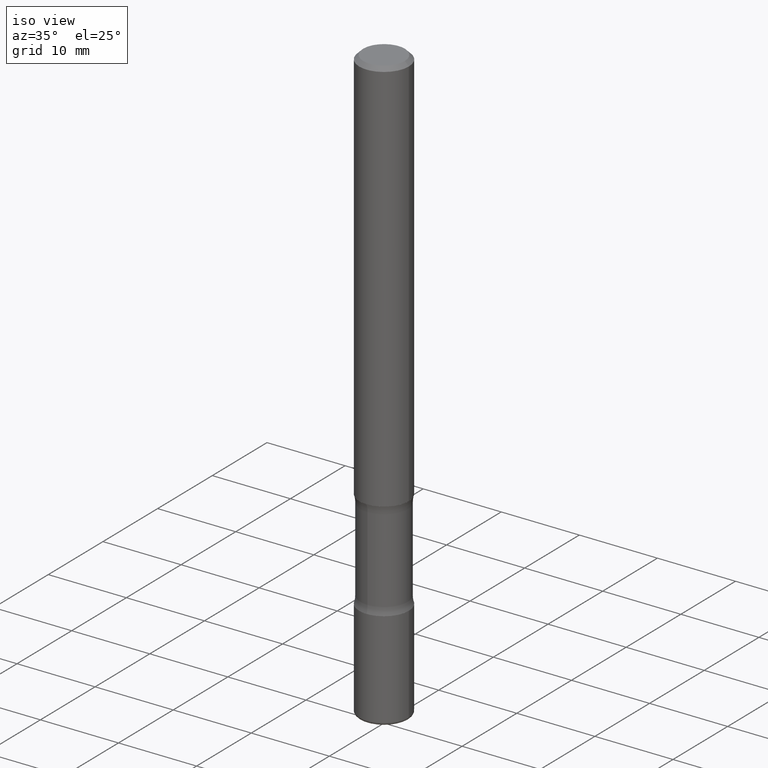
[diagram: clean part render]
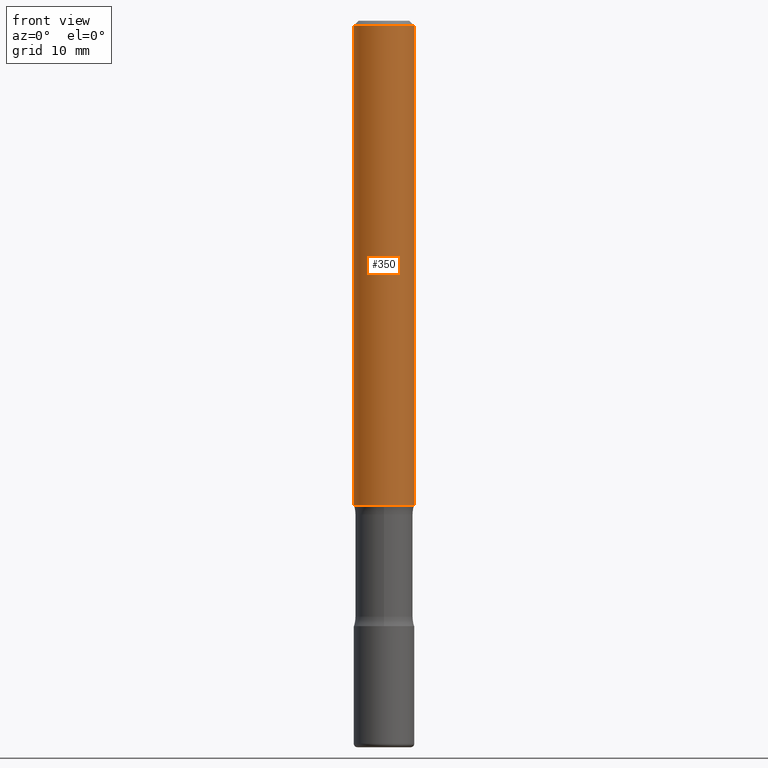
[diagram: tour spotlight — one face highlighted and labeled with its STEP entity id]
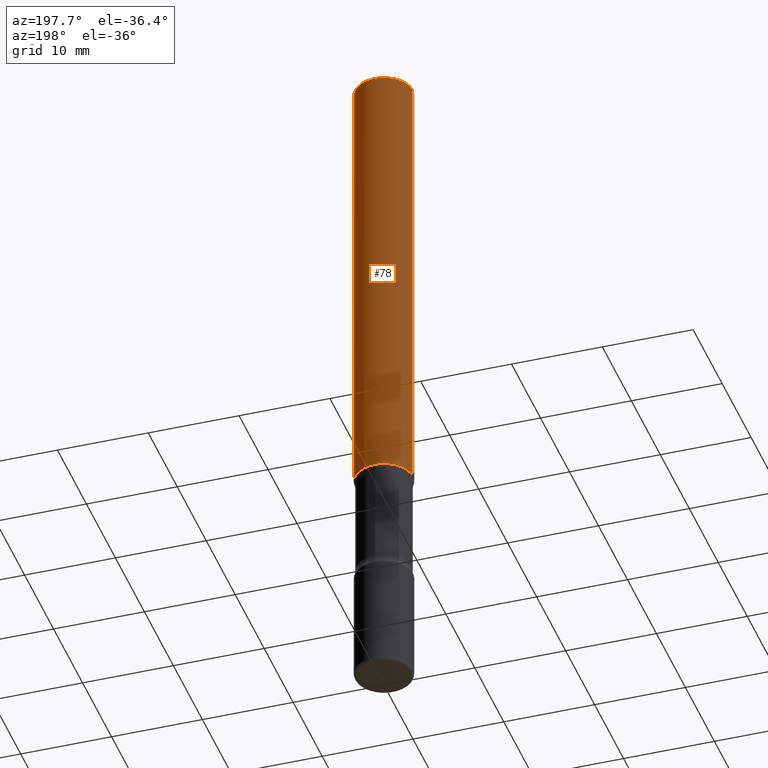
[diagram: tour spotlight — one face highlighted and labeled with its STEP entity id]
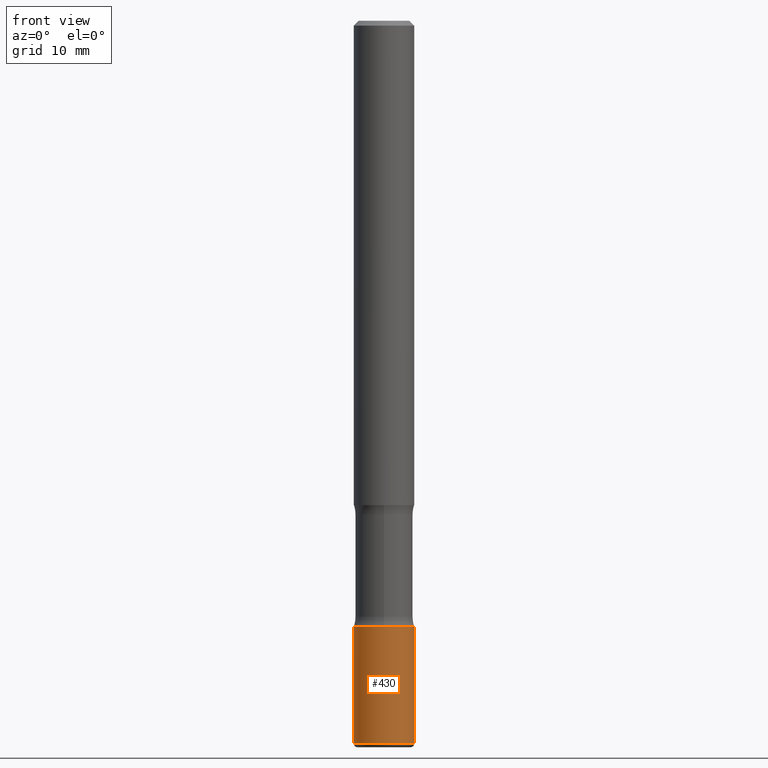
[diagram: tour spotlight — one face highlighted and labeled with its STEP entity id]
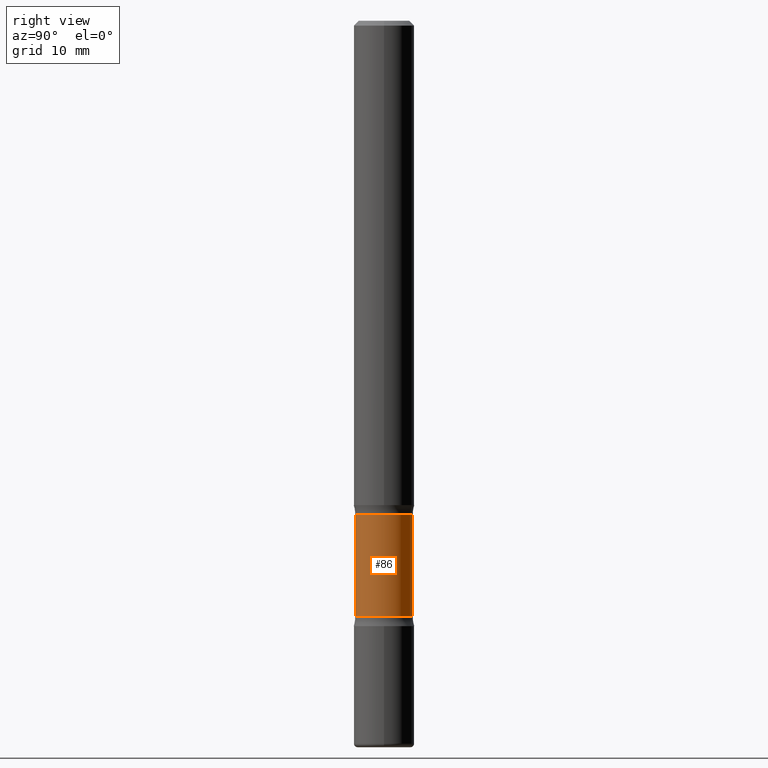
[diagram: tour spotlight — one face highlighted and labeled with its STEP entity id]
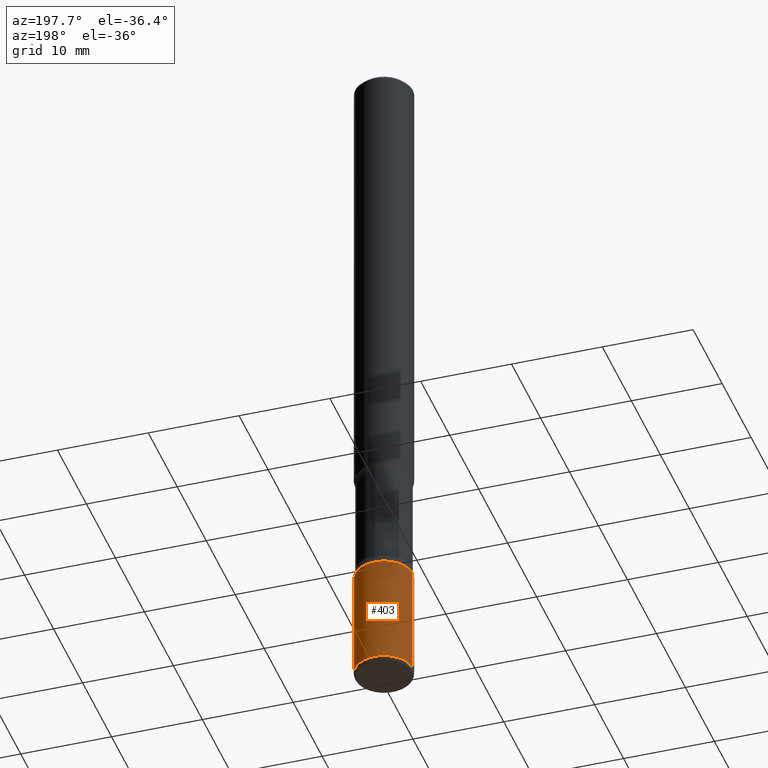
[diagram: tour spotlight — one face highlighted and labeled with its STEP entity id]
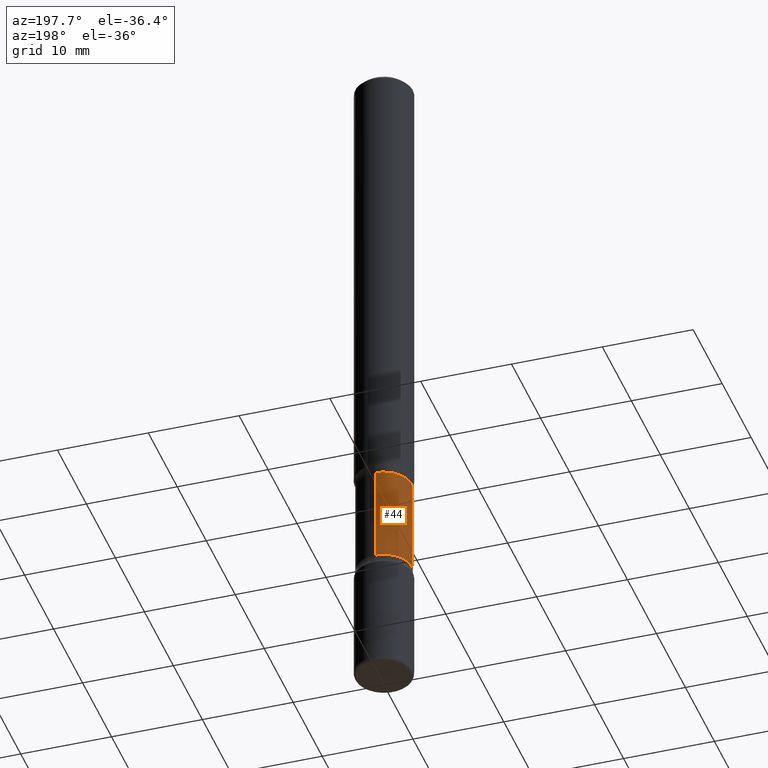
[diagram: tour spotlight — one face highlighted and labeled with its STEP entity id]
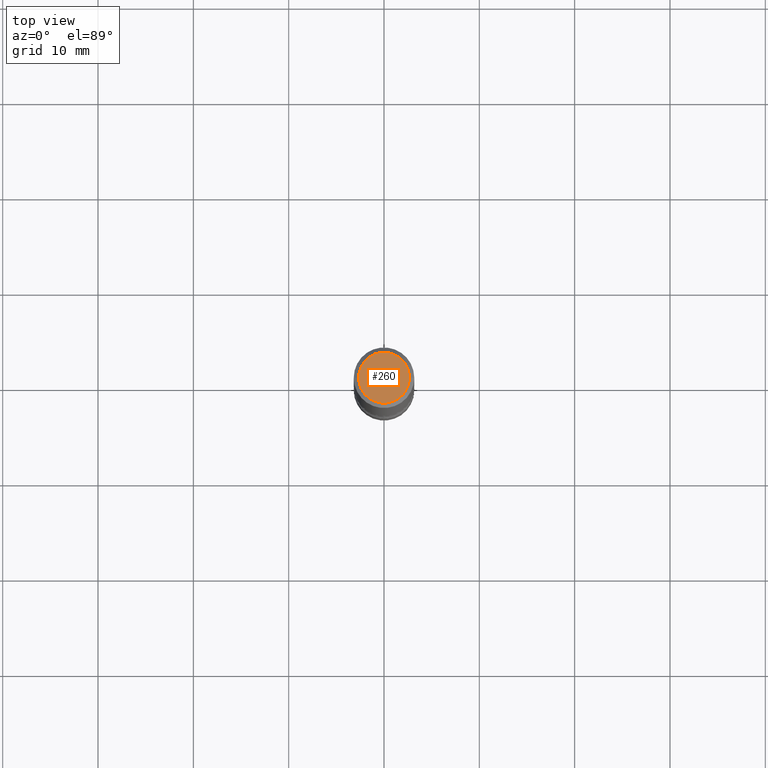
[diagram: tour spotlight — one face highlighted and labeled with its STEP entity id]
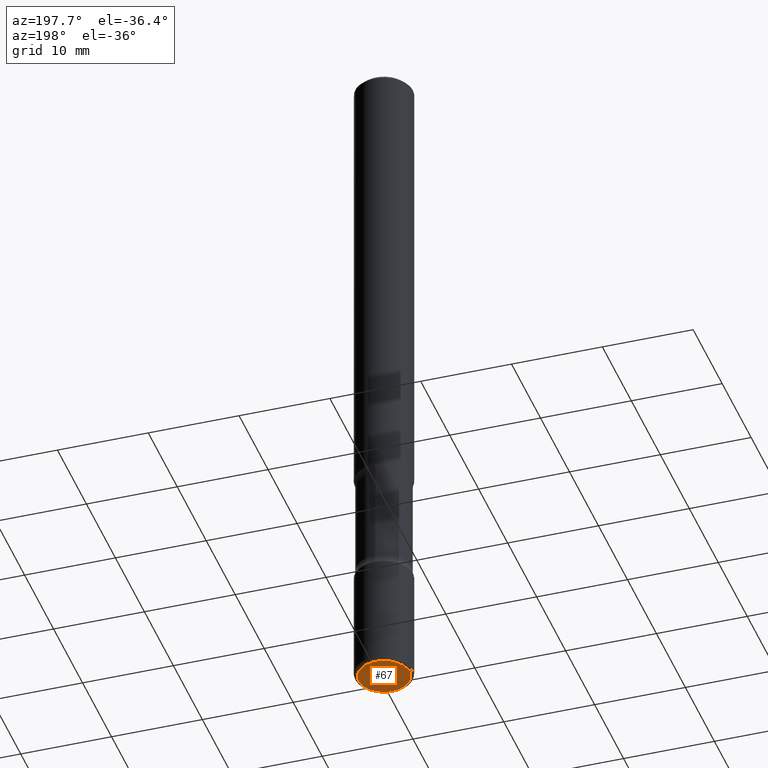
[diagram: tour spotlight — one face highlighted and labeled with its STEP entity id]
A machine part: a face-by-face anatomy tour. The part has 20 B-rep faces; the first image is the clean iso view, then the 8 largest visible faces are spotlighted one at a time (largest first), each with its STEP entity span.

Face 1 — front view, entity #350. In plain terms, the highlighted cylindrical surface (edge-blend (fillet) strip) has radius 3.175 mm, axis along (-0, 0, 1).
Definition (entity closure, byte-faithful):
#1 = VECTOR ( 'NONE', #219, 39.37007874015748143 ) ;
#11 = CIRCLE ( 'NONE', #554, 0.1249999999999997918 ) ;
#14 = AXIS2_PLACEMENT_3D ( 'NONE', #116, #291, #80 ) ;
#39 = EDGE_CURVE ( 'NONE', #68, #518, #11, .T. ) ;
#53 = DIRECTION ( 'NONE',  ( 1.000000000000000000, -6.982962677686266711E-15, 0.000000000000000000 ) ) ;
#68 = VERTEX_POINT ( 'NONE', #333 ) ;
#80 = DIRECTION ( 'NONE',  ( 1.000000000000000000, -6.982962677686269077E-15, 0.000000000000000000 ) ) ;
#88 = LINE ( 'NONE', #531, #1 ) ;
#95 = VECTOR ( 'NONE', #270, 39.37007874015748143 ) ;
#114 = ORIENTED_EDGE ( 'NONE', *, *, #478, .T. ) ;
#116 = CARTESIAN_POINT ( 'NONE',  ( 4.890937612370273194E-29, -6.982962677686291165E-15, -2.000000000000000000 ) ) ;
#122 = CARTESIAN_POINT ( 'NONE',  ( -0.1250000000000000278, -2.638217732531448450E-15, -2.000000000000000000 ) ) ;
#130 = ORIENTED_EDGE ( 'NONE', *, *, #376, .F. ) ;
#179 = EDGE_CURVE ( 'NONE', #188, #518, #88, .T. ) ;
#185 = DIRECTION ( 'NONE',  ( -2.445468806185136597E-29, 3.491481338843145583E-15, 1.000000000000000000 ) ) ;
#188 = VERTEX_POINT ( 'NONE', #308 ) ;
#190 = FACE_OUTER_BOUND ( 'NONE', #442, .T. ) ;
#198 = ORIENTED_EDGE ( 'NONE', *, *, #39, .F. ) ;
#214 = LINE ( 'NONE', #383, #95 ) ;
#219 = DIRECTION ( 'NONE',  ( -2.445468806185136877E-29, 3.491481338843145188E-15, 1.000000000000000000 ) ) ;
#256 = CARTESIAN_POINT ( 'NONE',  ( 0.000000000000000000, 0.000000000000000000, 0.000000000000000000 ) ) ;
#257 = CARTESIAN_POINT ( 'NONE',  ( 4.890937612370279289E-31, -6.982962677686299005E-17, -0.02000000000000002470 ) ) ;
#267 = CARTESIAN_POINT ( 'NONE',  ( 0.1249999999999997918, -9.273918764983029686E-16, -0.02000000000000002470 ) ) ;
#270 = DIRECTION ( 'NONE',  ( -2.445468806185136877E-29, 3.491481338843145188E-15, 1.000000000000000000 ) ) ;
#287 = CIRCLE ( 'NONE', #14, 0.1250000000000000278 ) ;
#289 = ORIENTED_EDGE ( 'NONE', *, *, #179, .T. ) ;
#291 = DIRECTION ( 'NONE',  ( -2.445468806185136597E-29, 3.491481338843145583E-15, 1.000000000000000000 ) ) ;
#308 = CARTESIAN_POINT ( 'NONE',  ( 0.1250000000000000278, -7.855833012397075293E-15, -2.000000000000000000 ) ) ;
#333 = CARTESIAN_POINT ( 'NONE',  ( -0.1249999999999997918, 8.030407079339189559E-16, -0.02000000000000002470 ) ) ;
#350 = ADVANCED_FACE ( 'NONE', ( #190 ), #365, .T. ) ;
#365 = CYLINDRICAL_SURFACE ( 'NONE', #465, 0.1249999999999999167 ) ;
#376 = EDGE_CURVE ( 'NONE', #381, #68, #214, .T. ) ;
#381 = VERTEX_POINT ( 'NONE', #122 ) ;
#383 = CARTESIAN_POINT ( 'NONE',  ( -0.1249999999999999167, 8.881784197001246407E-16, -6.148668862818628023E-30 ) ) ;
#442 = EDGE_LOOP ( 'NONE', ( #130, #114, #289, #198 ) ) ;
#465 = AXIS2_PLACEMENT_3D ( 'NONE', #256, #477, #468 ) ;
#468 = DIRECTION ( 'NONE',  ( 1.000000000000000000, -6.982962677686266711E-15, 4.876176775795935793E-29 ) ) ;
#477 = DIRECTION ( 'NONE',  ( -2.445468806185136597E-29, 3.491481338843145583E-15, 1.000000000000000000 ) ) ;
#478 = EDGE_CURVE ( 'NONE', #381, #188, #287, .T. ) ;
#518 = VERTEX_POINT ( 'NONE', #267 ) ;
#531 = CARTESIAN_POINT ( 'NONE',  ( 0.1249999999999999167, -8.728703347107827472E-16, 6.095220969744915537E-30 ) ) ;
#554 = AXIS2_PLACEMENT_3D ( 'NONE', #257, #185, #53 ) ;

Face 2 — auxiliary view, entity #78. In plain terms, the highlighted cylindrical surface (edge-blend (fillet) strip) has radius 3.175 mm, axis along (-0, 0, 1).
Definition (entity closure, byte-faithful):
#1 = VECTOR ( 'NONE', #219, 39.37007874015748143 ) ;
#13 = CARTESIAN_POINT ( 'NONE',  ( 4.890937612370273194E-29, -6.982962677686291165E-15, -2.000000000000000000 ) ) ;
#20 = CYLINDRICAL_SURFACE ( 'NONE', #223, 0.1249999999999999167 ) ;
#34 = EDGE_LOOP ( 'NONE', ( #284, #321, #449, #110 ) ) ;
#68 = VERTEX_POINT ( 'NONE', #333 ) ;
#78 = ADVANCED_FACE ( 'NONE', ( #226 ), #20, .T. ) ;
#88 = LINE ( 'NONE', #531, #1 ) ;
#95 = VECTOR ( 'NONE', #270, 39.37007874015748143 ) ;
#110 = ORIENTED_EDGE ( 'NONE', *, *, #179, .F. ) ;
#118 = EDGE_CURVE ( 'NONE', #188, #381, #240, .T. ) ;
#122 = CARTESIAN_POINT ( 'NONE',  ( -0.1250000000000000278, -2.638217732531448450E-15, -2.000000000000000000 ) ) ;
#179 = EDGE_CURVE ( 'NONE', #188, #518, #88, .T. ) ;
#180 = DIRECTION ( 'NONE',  ( -2.445468806185136597E-29, 3.491481338843145583E-15, 1.000000000000000000 ) ) ;
#188 = VERTEX_POINT ( 'NONE', #308 ) ;
#214 = LINE ( 'NONE', #383, #95 ) ;
#219 = DIRECTION ( 'NONE',  ( -2.445468806185136877E-29, 3.491481338843145188E-15, 1.000000000000000000 ) ) ;
#221 = DIRECTION ( 'NONE',  ( 1.000000000000000000, -6.982962677686266711E-15, 4.876176775795935793E-29 ) ) ;
#223 = AXIS2_PLACEMENT_3D ( 'NONE', #231, #432, #221 ) ;
#225 = CARTESIAN_POINT ( 'NONE',  ( 4.890937612370279289E-31, -6.982962677686299005E-17, -0.02000000000000002470 ) ) ;
#226 = FACE_OUTER_BOUND ( 'NONE', #34, .T. ) ;
#231 = CARTESIAN_POINT ( 'NONE',  ( 0.000000000000000000, 0.000000000000000000, 0.000000000000000000 ) ) ;
#240 = CIRCLE ( 'NONE', #405, 0.1250000000000000278 ) ;
#267 = CARTESIAN_POINT ( 'NONE',  ( 0.1249999999999997918, -9.273918764983029686E-16, -0.02000000000000002470 ) ) ;
#270 = DIRECTION ( 'NONE',  ( -2.445468806185136877E-29, 3.491481338843145188E-15, 1.000000000000000000 ) ) ;
#284 = ORIENTED_EDGE ( 'NONE', *, *, #118, .T. ) ;
#285 = AXIS2_PLACEMENT_3D ( 'NONE', #225, #480, #349 ) ;
#308 = CARTESIAN_POINT ( 'NONE',  ( 0.1250000000000000278, -7.855833012397075293E-15, -2.000000000000000000 ) ) ;
#321 = ORIENTED_EDGE ( 'NONE', *, *, #376, .T. ) ;
#333 = CARTESIAN_POINT ( 'NONE',  ( -0.1249999999999997918, 8.030407079339189559E-16, -0.02000000000000002470 ) ) ;
#349 = DIRECTION ( 'NONE',  ( 1.000000000000000000, -6.982962677686266711E-15, 0.000000000000000000 ) ) ;
#376 = EDGE_CURVE ( 'NONE', #381, #68, #214, .T. ) ;
#381 = VERTEX_POINT ( 'NONE', #122 ) ;
#383 = CARTESIAN_POINT ( 'NONE',  ( -0.1249999999999999167, 8.881784197001246407E-16, -6.148668862818628023E-30 ) ) ;
#405 = AXIS2_PLACEMENT_3D ( 'NONE', #13, #180, #527 ) ;
#432 = DIRECTION ( 'NONE',  ( -2.445468806185136597E-29, 3.491481338843145583E-15, 1.000000000000000000 ) ) ;
#449 = ORIENTED_EDGE ( 'NONE', *, *, #528, .F. ) ;
#474 = CIRCLE ( 'NONE', #285, 0.1249999999999997918 ) ;
#480 = DIRECTION ( 'NONE',  ( -2.445468806185136597E-29, 3.491481338843145583E-15, 1.000000000000000000 ) ) ;
#518 = VERTEX_POINT ( 'NONE', #267 ) ;
#527 = DIRECTION ( 'NONE',  ( 1.000000000000000000, -6.982962677686269077E-15, 0.000000000000000000 ) ) ;
#528 = EDGE_CURVE ( 'NONE', #518, #68, #474, .T. ) ;
#531 = CARTESIAN_POINT ( 'NONE',  ( 0.1249999999999999167, -8.728703347107827472E-16, 6.095220969744915537E-30 ) ) ;

Face 3 — front view, entity #430. In plain terms, the highlighted cylindrical surface (edge-blend (fillet) strip) has radius 3.175 mm, axis along (-0, 0, 1).
Definition (entity closure, byte-faithful):
#4 = DIRECTION ( 'NONE',  ( 1.000000000000000000, -6.982962677686266711E-15, 4.876176775795935232E-29 ) ) ;
#5 = CARTESIAN_POINT ( 'NONE',  ( -0.1250000000000000555, -8.687209152077199707E-15, -2.499999999999999556 ) ) ;
#18 = EDGE_CURVE ( 'NONE', #244, #396, #170, .T. ) ;
#32 = AXIS2_PLACEMENT_3D ( 'NONE', #416, #153, #462 ) ;
#37 = EDGE_LOOP ( 'NONE', ( #510, #174, #331, #186 ) ) ;
#42 = VECTOR ( 'NONE', #343, 39.37007874015748143 ) ;
#58 = DIRECTION ( 'NONE',  ( 1.000000000000000000, -6.982962677686270655E-15, 0.000000000000000000 ) ) ;
#62 = CARTESIAN_POINT ( 'NONE',  ( 0.1250000000000003331, -1.129494213115757459E-14, -2.984999999999999432 ) ) ;
#85 = FACE_OUTER_BOUND ( 'NONE', #37, .T. ) ;
#91 = CARTESIAN_POINT ( 'NONE',  ( -0.1250000000000001110, 8.881784197001260212E-16, -6.148668862818637832E-30 ) ) ;
#108 = LINE ( 'NONE', #279, #165 ) ;
#111 = EDGE_CURVE ( 'NONE', #244, #543, #516, .T. ) ;
#151 = AXIS2_PLACEMENT_3D ( 'NONE', #210, #382, #4 ) ;
#153 = DIRECTION ( 'NONE',  ( -2.445468806185136597E-29, 3.491481338843145583E-15, 1.000000000000000000 ) ) ;
#165 = VECTOR ( 'NONE', #330, 39.37007874015748143 ) ;
#170 = LINE ( 'NONE', #91, #42 ) ;
#174 = ORIENTED_EDGE ( 'NONE', *, *, #111, .T. ) ;
#177 = DIRECTION ( 'NONE',  ( -2.445468806185136597E-29, 3.491481338843145583E-15, 1.000000000000000000 ) ) ;
#186 = ORIENTED_EDGE ( 'NONE', *, *, #328, .F. ) ;
#210 = CARTESIAN_POINT ( 'NONE',  ( 0.000000000000000000, 0.000000000000000000, 0.000000000000000000 ) ) ;
#244 = VERTEX_POINT ( 'NONE', #541 ) ;
#253 = CARTESIAN_POINT ( 'NONE',  ( 0.1250000000000000555, -9.601573681818646704E-15, -2.499999999999999556 ) ) ;
#254 = CYLINDRICAL_SURFACE ( 'NONE', #151, 0.1250000000000001110 ) ;
#265 = AXIS2_PLACEMENT_3D ( 'NONE', #269, #177, #58 ) ;
#269 = CARTESIAN_POINT ( 'NONE',  ( 7.299724386462631351E-29, -1.042207179644678651E-14, -2.984999999999999432 ) ) ;
#278 = EDGE_CURVE ( 'NONE', #543, #370, #108, .T. ) ;
#279 = CARTESIAN_POINT ( 'NONE',  ( 0.1250000000000001110, -8.728703347107841277E-16, 6.095220969744924646E-30 ) ) ;
#328 = EDGE_CURVE ( 'NONE', #396, #370, #389, .T. ) ;
#330 = DIRECTION ( 'NONE',  ( -2.445468806185136877E-29, 3.491481338843145188E-15, 1.000000000000000000 ) ) ;
#331 = ORIENTED_EDGE ( 'NONE', *, *, #278, .T. ) ;
#343 = DIRECTION ( 'NONE',  ( -2.445468806185136877E-29, 3.491481338843145188E-15, 1.000000000000000000 ) ) ;
#370 = VERTEX_POINT ( 'NONE', #253 ) ;
#382 = DIRECTION ( 'NONE',  ( -2.445468806185136597E-29, 3.491481338843145583E-15, 1.000000000000000000 ) ) ;
#389 = CIRCLE ( 'NONE', #32, 0.1250000000000000555 ) ;
#396 = VERTEX_POINT ( 'NONE', #5 ) ;
#416 = CARTESIAN_POINT ( 'NONE',  ( 6.113672015462840371E-29, -8.728703347107863365E-15, -2.499999999999999556 ) ) ;
#430 = ADVANCED_FACE ( 'NONE', ( #85 ), #254, .T. ) ;
#462 = DIRECTION ( 'NONE',  ( 1.000000000000000000, -6.982962677686267499E-15, 0.000000000000000000 ) ) ;
#510 = ORIENTED_EDGE ( 'NONE', *, *, #18, .F. ) ;
#516 = CIRCLE ( 'NONE', #265, 0.1250000000000001388 ) ;
#541 = CARTESIAN_POINT ( 'NONE',  ( -0.1250000000000003331, -9.533893376746658125E-15, -2.984999999999999432 ) ) ;
#543 = VERTEX_POINT ( 'NONE', #62 ) ;

Face 4 — right view, entity #86. In plain terms, the highlighted cylindrical surface (edge-blend (fillet) strip) has radius 3.0162 mm, axis along (0, -0, -1).
Definition (entity closure, byte-faithful):
#46 = CARTESIAN_POINT ( 'NONE',  ( 8.292268179753179304E-16, 0.1187499999999896000, -3.000000000000000444 ) ) ;
#48 = DIRECTION ( 'NONE',  ( 6.982962677686265133E-15, 1.000000000000000000, -2.300503573612011422E-15 ) ) ;
#60 = DIRECTION ( 'NONE',  ( 2.543540764811263793E-29, -3.351036712181296563E-15, -1.000000000000000000 ) ) ;
#73 = AXIS2_PLACEMENT_3D ( 'NONE', #259, #184, #48 ) ;
#86 = ADVANCED_FACE ( 'NONE', ( #490 ), #183, .T. ) ;
#93 = CARTESIAN_POINT ( 'NONE',  ( -8.146841372352953582E-16, -0.1187500000000103889, -2.999999999999999112 ) ) ;
#98 = CARTESIAN_POINT ( 'NONE',  ( -8.361231934783443908E-16, -0.1187500000000085848, -2.460968762510009622 ) ) ;
#103 = VERTEX_POINT ( 'NONE', #98 ) ;
#119 = AXIS2_PLACEMENT_3D ( 'NONE', #247, #412, #250 ) ;
#183 = CYLINDRICAL_SURFACE ( 'NONE', #193, 0.1187499999999999944 ) ;
#184 = DIRECTION ( 'NONE',  ( 2.543540764811263793E-29, -3.351036712181296563E-15, -1.000000000000000000 ) ) ;
#191 = VECTOR ( 'NONE', #482, 39.37007874015748143 ) ;
#193 = AXIS2_PLACEMENT_3D ( 'NONE', #303, #60, #533 ) ;
#204 = LINE ( 'NONE', #46, #452 ) ;
#224 = CIRCLE ( 'NONE', #73, 0.1187499999999999944 ) ;
#232 = EDGE_CURVE ( 'NONE', #359, #103, #305, .T. ) ;
#247 = CARTESIAN_POINT ( 'NONE',  ( 6.014394471806022296E-29, -8.597908237357040299E-15, -2.460968762510010066 ) ) ;
#250 = DIRECTION ( 'NONE',  ( 6.982962677686265133E-15, 1.000000000000000000, -4.601007147224022844E-15 ) ) ;
#255 = EDGE_LOOP ( 'NONE', ( #453, #497, #421, #392 ) ) ;
#259 = CARTESIAN_POINT ( 'NONE',  ( 4.941179176714029352E-29, -7.183980100768040122E-15, -2.039031237489990378 ) ) ;
#303 = CARTESIAN_POINT ( 'NONE',  ( 7.385442397868472267E-29, -1.040422170319851125E-14, -2.999999999999999556 ) ) ;
#305 = LINE ( 'NONE', #93, #191 ) ;
#324 = CIRCLE ( 'NONE', #119, 0.1187499999999999806 ) ;
#359 = VERTEX_POINT ( 'NONE', #473 ) ;
#371 = EDGE_CURVE ( 'NONE', #450, #359, #224, .T. ) ;
#392 = ORIENTED_EDGE ( 'NONE', *, *, #417, .F. ) ;
#407 = VERTEX_POINT ( 'NONE', #461 ) ;
#412 = DIRECTION ( 'NONE',  ( 2.543540764811263793E-29, -3.351036712181296563E-15, -1.000000000000000000 ) ) ;
#417 = EDGE_CURVE ( 'NONE', #450, #407, #204, .T. ) ;
#421 = ORIENTED_EDGE ( 'NONE', *, *, #494, .F. ) ;
#450 = VERTEX_POINT ( 'NONE', #551 ) ;
#452 = VECTOR ( 'NONE', #466, 39.37007874015748143 ) ;
#453 = ORIENTED_EDGE ( 'NONE', *, *, #371, .T. ) ;
#461 = CARTESIAN_POINT ( 'NONE',  ( 8.292268179753040267E-16, 0.1187499999999913763, -2.460968762510010510 ) ) ;
#466 = DIRECTION ( 'NONE',  ( 2.543540764811263793E-29, -3.351036712181296563E-15, -1.000000000000000000 ) ) ;
#473 = CARTESIAN_POINT ( 'NONE',  ( -8.361231934783569139E-16, -0.1187500000000071831, -2.039031237489989934 ) ) ;
#482 = DIRECTION ( 'NONE',  ( 2.543540764811263793E-29, -3.351036712181296563E-15, -1.000000000000000000 ) ) ;
#490 = FACE_OUTER_BOUND ( 'NONE', #255, .T. ) ;
#494 = EDGE_CURVE ( 'NONE', #407, #103, #324, .T. ) ;
#497 = ORIENTED_EDGE ( 'NONE', *, *, #232, .T. ) ;
#533 = DIRECTION ( 'NONE',  ( 6.982962677686265133E-15, 1.000000000000000000, -4.601007147224022844E-15 ) ) ;
#551 = CARTESIAN_POINT ( 'NONE',  ( 8.292268179752933771E-16, 0.1187499999999928058, -2.039031237489990378 ) ) ;

Face 5 — auxiliary view, entity #403. In plain terms, the highlighted cylindrical surface (edge-blend (fillet) strip) has radius 3.175 mm, axis along (-0, 0, 1).
Definition (entity closure, byte-faithful):
#5 = CARTESIAN_POINT ( 'NONE',  ( -0.1250000000000000555, -8.687209152077199707E-15, -2.499999999999999556 ) ) ;
#18 = EDGE_CURVE ( 'NONE', #244, #396, #170, .T. ) ;
#30 = ORIENTED_EDGE ( 'NONE', *, *, #544, .F. ) ;
#42 = VECTOR ( 'NONE', #343, 39.37007874015748143 ) ;
#57 = CARTESIAN_POINT ( 'NONE',  ( 6.113672015462840371E-29, -8.728703347107863365E-15, -2.499999999999999556 ) ) ;
#62 = CARTESIAN_POINT ( 'NONE',  ( 0.1250000000000003331, -1.129494213115757459E-14, -2.984999999999999432 ) ) ;
#91 = CARTESIAN_POINT ( 'NONE',  ( -0.1250000000000001110, 8.881784197001260212E-16, -6.148668862818637832E-30 ) ) ;
#108 = LINE ( 'NONE', #279, #165 ) ;
#123 = CIRCLE ( 'NONE', #414, 0.1250000000000001388 ) ;
#149 = ORIENTED_EDGE ( 'NONE', *, *, #18, .T. ) ;
#165 = VECTOR ( 'NONE', #330, 39.37007874015748143 ) ;
#170 = LINE ( 'NONE', #91, #42 ) ;
#171 = DIRECTION ( 'NONE',  ( 1.000000000000000000, -6.982962677686266711E-15, 4.876176775795935232E-29 ) ) ;
#172 = DIRECTION ( 'NONE',  ( 1.000000000000000000, -6.982962677686270655E-15, 0.000000000000000000 ) ) ;
#227 = DIRECTION ( 'NONE',  ( -2.445468806185136597E-29, 3.491481338843145583E-15, 1.000000000000000000 ) ) ;
#237 = EDGE_CURVE ( 'NONE', #543, #244, #123, .T. ) ;
#241 = AXIS2_PLACEMENT_3D ( 'NONE', #57, #227, #393 ) ;
#244 = VERTEX_POINT ( 'NONE', #541 ) ;
#251 = AXIS2_PLACEMENT_3D ( 'NONE', #377, #425, #171 ) ;
#253 = CARTESIAN_POINT ( 'NONE',  ( 0.1250000000000000555, -9.601573681818646704E-15, -2.499999999999999556 ) ) ;
#278 = EDGE_CURVE ( 'NONE', #543, #370, #108, .T. ) ;
#279 = CARTESIAN_POINT ( 'NONE',  ( 0.1250000000000001110, -8.728703347107841277E-16, 6.095220969744924646E-30 ) ) ;
#330 = DIRECTION ( 'NONE',  ( -2.445468806185136877E-29, 3.491481338843145188E-15, 1.000000000000000000 ) ) ;
#343 = DIRECTION ( 'NONE',  ( -2.445468806185136877E-29, 3.491481338843145188E-15, 1.000000000000000000 ) ) ;
#345 = CARTESIAN_POINT ( 'NONE',  ( 7.299724386462631351E-29, -1.042207179644678651E-14, -2.984999999999999432 ) ) ;
#357 = ORIENTED_EDGE ( 'NONE', *, *, #278, .F. ) ;
#370 = VERTEX_POINT ( 'NONE', #253 ) ;
#377 = CARTESIAN_POINT ( 'NONE',  ( 0.000000000000000000, 0.000000000000000000, 0.000000000000000000 ) ) ;
#379 = CYLINDRICAL_SURFACE ( 'NONE', #251, 0.1250000000000001110 ) ;
#393 = DIRECTION ( 'NONE',  ( 1.000000000000000000, -6.982962677686267499E-15, 0.000000000000000000 ) ) ;
#396 = VERTEX_POINT ( 'NONE', #5 ) ;
#403 = ADVANCED_FACE ( 'NONE', ( #433 ), #379, .T. ) ;
#414 = AXIS2_PLACEMENT_3D ( 'NONE', #345, #426, #172 ) ;
#425 = DIRECTION ( 'NONE',  ( -2.445468806185136597E-29, 3.491481338843145583E-15, 1.000000000000000000 ) ) ;
#426 = DIRECTION ( 'NONE',  ( -2.445468806185136597E-29, 3.491481338843145583E-15, 1.000000000000000000 ) ) ;
#428 = EDGE_LOOP ( 'NONE', ( #472, #149, #30, #357 ) ) ;
#433 = FACE_OUTER_BOUND ( 'NONE', #428, .T. ) ;
#472 = ORIENTED_EDGE ( 'NONE', *, *, #237, .T. ) ;
#498 = CIRCLE ( 'NONE', #241, 0.1250000000000000555 ) ;
#541 = CARTESIAN_POINT ( 'NONE',  ( -0.1250000000000003331, -9.533893376746658125E-15, -2.984999999999999432 ) ) ;
#543 = VERTEX_POINT ( 'NONE', #62 ) ;
#544 = EDGE_CURVE ( 'NONE', #370, #396, #498, .T. ) ;

Face 6 — auxiliary view, entity #44. In plain terms, the highlighted cylindrical surface (edge-blend (fillet) strip) has radius 3.0162 mm, axis along (0, -0, -1).
Definition (entity closure, byte-faithful):
#8 = CARTESIAN_POINT ( 'NONE',  ( 4.941179176714029352E-29, -7.183980100768040122E-15, -2.039031237489990378 ) ) ;
#44 = ADVANCED_FACE ( 'NONE', ( #355 ), #317, .T. ) ;
#45 = EDGE_CURVE ( 'NONE', #359, #450, #59, .T. ) ;
#46 = CARTESIAN_POINT ( 'NONE',  ( 8.292268179753179304E-16, 0.1187499999999896000, -3.000000000000000444 ) ) ;
#47 = ORIENTED_EDGE ( 'NONE', *, *, #417, .T. ) ;
#52 = CARTESIAN_POINT ( 'NONE',  ( 7.385442397868472267E-29, -1.040422170319851125E-14, -2.999999999999999556 ) ) ;
#59 = CIRCLE ( 'NONE', #301, 0.1187499999999999944 ) ;
#93 = CARTESIAN_POINT ( 'NONE',  ( -8.146841372352953582E-16, -0.1187500000000103889, -2.999999999999999112 ) ) ;
#98 = CARTESIAN_POINT ( 'NONE',  ( -8.361231934783443908E-16, -0.1187500000000085848, -2.460968762510009622 ) ) ;
#99 = DIRECTION ( 'NONE',  ( 6.982962677686265133E-15, 1.000000000000000000, -2.300503573612011422E-15 ) ) ;
#103 = VERTEX_POINT ( 'NONE', #98 ) ;
#135 = CARTESIAN_POINT ( 'NONE',  ( 6.014394471806022296E-29, -8.597908237357040299E-15, -2.460968762510010066 ) ) ;
#150 = AXIS2_PLACEMENT_3D ( 'NONE', #52, #216, #384 ) ;
#157 = CIRCLE ( 'NONE', #192, 0.1187499999999999806 ) ;
#191 = VECTOR ( 'NONE', #482, 39.37007874015748143 ) ;
#192 = AXIS2_PLACEMENT_3D ( 'NONE', #135, #306, #302 ) ;
#204 = LINE ( 'NONE', #46, #452 ) ;
#216 = DIRECTION ( 'NONE',  ( 2.543540764811263793E-29, -3.351036712181296563E-15, -1.000000000000000000 ) ) ;
#232 = EDGE_CURVE ( 'NONE', #359, #103, #305, .T. ) ;
#239 = EDGE_LOOP ( 'NONE', ( #399, #327, #47, #467 ) ) ;
#301 = AXIS2_PLACEMENT_3D ( 'NONE', #8, #489, #99 ) ;
#302 = DIRECTION ( 'NONE',  ( 6.982962677686265133E-15, 1.000000000000000000, -4.601007147224022844E-15 ) ) ;
#305 = LINE ( 'NONE', #93, #191 ) ;
#306 = DIRECTION ( 'NONE',  ( 2.543540764811263793E-29, -3.351036712181296563E-15, -1.000000000000000000 ) ) ;
#317 = CYLINDRICAL_SURFACE ( 'NONE', #150, 0.1187499999999999944 ) ;
#327 = ORIENTED_EDGE ( 'NONE', *, *, #45, .T. ) ;
#355 = FACE_OUTER_BOUND ( 'NONE', #239, .T. ) ;
#359 = VERTEX_POINT ( 'NONE', #473 ) ;
#384 = DIRECTION ( 'NONE',  ( 6.982962677686265133E-15, 1.000000000000000000, -4.601007147224022844E-15 ) ) ;
#399 = ORIENTED_EDGE ( 'NONE', *, *, #232, .F. ) ;
#407 = VERTEX_POINT ( 'NONE', #461 ) ;
#417 = EDGE_CURVE ( 'NONE', #450, #407, #204, .T. ) ;
#450 = VERTEX_POINT ( 'NONE', #551 ) ;
#452 = VECTOR ( 'NONE', #466, 39.37007874015748143 ) ;
#461 = CARTESIAN_POINT ( 'NONE',  ( 8.292268179753040267E-16, 0.1187499999999913763, -2.460968762510010510 ) ) ;
#466 = DIRECTION ( 'NONE',  ( 2.543540764811263793E-29, -3.351036712181296563E-15, -1.000000000000000000 ) ) ;
#467 = ORIENTED_EDGE ( 'NONE', *, *, #513, .F. ) ;
#473 = CARTESIAN_POINT ( 'NONE',  ( -8.361231934783569139E-16, -0.1187500000000071831, -2.039031237489989934 ) ) ;
#482 = DIRECTION ( 'NONE',  ( 2.543540764811263793E-29, -3.351036712181296563E-15, -1.000000000000000000 ) ) ;
#489 = DIRECTION ( 'NONE',  ( 2.543540764811263793E-29, -3.351036712181296563E-15, -1.000000000000000000 ) ) ;
#513 = EDGE_CURVE ( 'NONE', #103, #407, #157, .T. ) ;
#551 = CARTESIAN_POINT ( 'NONE',  ( 8.292268179752933771E-16, 0.1187499999999928058, -2.039031237489990378 ) ) ;

Face 7 — top view, entity #260. In plain terms, the highlighted planar face has unit normal (0, -0, -1).
Definition (entity closure, byte-faithful):
#7 = CARTESIAN_POINT ( 'NONE',  ( 7.332110811570564466E-16, 0.1049999999999997879, -3.644712843334793412E-16 ) ) ;
#23 = ORIENTED_EDGE ( 'NONE', *, *, #248, .T. ) ;
#27 = DIRECTION ( 'NONE',  ( 1.000000000000000000, -6.982962677686265922E-15, 4.876206205277404118E-29 ) ) ;
#49 = PLANE ( 'NONE',  #380 ) ;
#63 = CARTESIAN_POINT ( 'NONE',  ( -1.043851414335219820E-46, 1.490343170380447200E-32, 4.268512490100411279E-18 ) ) ;
#107 = DIRECTION ( 'NONE',  ( -2.445468806185136597E-29, 3.491481338843145583E-15, 1.000000000000000000 ) ) ;
#136 = EDGE_CURVE ( 'NONE', #322, #404, #517, .T. ) ;
#139 = CIRCLE ( 'NONE', #264, 0.1049999999999997879 ) ;
#248 = EDGE_CURVE ( 'NONE', #404, #322, #139, .T. ) ;
#260 = ADVANCED_FACE ( 'NONE', ( #419 ), #49, .F. ) ;
#264 = AXIS2_PLACEMENT_3D ( 'NONE', #63, #536, #408 ) ;
#277 = AXIS2_PLACEMENT_3D ( 'NONE', #438, #107, #27 ) ;
#322 = VERTEX_POINT ( 'NONE', #335 ) ;
#335 = CARTESIAN_POINT ( 'NONE',  ( 0.1049999999999997879, -8.238720831321562839E-16, 4.268512490105855498E-18 ) ) ;
#380 = AXIS2_PLACEMENT_3D ( 'NONE', #7, #471, #458 ) ;
#404 = VERTEX_POINT ( 'NONE', #448 ) ;
#408 = DIRECTION ( 'NONE',  ( 1.000000000000000000, -6.982962677686265922E-15, 4.876206205277404118E-29 ) ) ;
#419 = FACE_OUTER_BOUND ( 'NONE', #469, .T. ) ;
#438 = CARTESIAN_POINT ( 'NONE',  ( -1.043851414335219820E-46, 1.490343170380447200E-32, 4.268512490100411279E-18 ) ) ;
#448 = CARTESIAN_POINT ( 'NONE',  ( -0.1049999999999997879, 7.681258945454876027E-16, 4.268512490095161194E-18 ) ) ;
#458 = DIRECTION ( 'NONE',  ( -1.000000000000000000, 6.982962677686265922E-15, -4.876176775795935793E-29 ) ) ;
#469 = EDGE_LOOP ( 'NONE', ( #23, #505 ) ) ;
#471 = DIRECTION ( 'NONE',  ( 2.438088387897960049E-29, -3.491481338843145188E-15, -1.000000000000000000 ) ) ;
#505 = ORIENTED_EDGE ( 'NONE', *, *, #136, .T. ) ;
#517 = CIRCLE ( 'NONE', #277, 0.1049999999999997879 ) ;
#536 = DIRECTION ( 'NONE',  ( -2.445468806185136597E-29, 3.491481338843145583E-15, 1.000000000000000000 ) ) ;

Face 8 — auxiliary view, entity #67. In plain terms, the highlighted planar face has unit normal (0, -0, -1).
Definition (entity closure, byte-faithful):
#17 = EDGE_LOOP ( 'NONE', ( #230, #314 ) ) ;
#64 = FACE_OUTER_BOUND ( 'NONE', #17, .T. ) ;
#67 = ADVANCED_FACE ( 'NONE', ( #64 ), #325, .T. ) ;
#79 = CARTESIAN_POINT ( 'NONE',  ( -0.1100000000000001532, -9.613370191969994157E-15, -3.000000000000000444 ) ) ;
#105 = VERTEX_POINT ( 'NONE', #218 ) ;
#133 = AXIS2_PLACEMENT_3D ( 'NONE', #334, #352, #456 ) ;
#152 = VERTEX_POINT ( 'NONE', #79 ) ;
#160 = CARTESIAN_POINT ( 'NONE',  ( 7.336406418555409790E-29, -1.047444401652943635E-14, -3.000000000000000444 ) ) ;
#194 = AXIS2_PLACEMENT_3D ( 'NONE', #368, #547, #288 ) ;
#218 = CARTESIAN_POINT ( 'NONE',  ( 0.1100000000000001532, -1.124256991107492790E-14, -3.000000000000000444 ) ) ;
#230 = ORIENTED_EDGE ( 'NONE', *, *, #320, .F. ) ;
#266 = CIRCLE ( 'NONE', #194, 0.1100000000000001532 ) ;
#288 = DIRECTION ( 'NONE',  ( 1.000000000000000000, -6.982962677686269866E-15, 0.000000000000000000 ) ) ;
#314 = ORIENTED_EDGE ( 'NONE', *, *, #501, .F. ) ;
#320 = EDGE_CURVE ( 'NONE', #105, #152, #266, .T. ) ;
#325 = PLANE ( 'NONE',  #133 ) ;
#334 = CARTESIAN_POINT ( 'NONE',  ( -3.068898625555304027E-29, -2.537543307287994980E-14, -2.999999999999999556 ) ) ;
#336 = DIRECTION ( 'NONE',  ( -2.445468806185136597E-29, 3.491481338843145583E-15, 1.000000000000000000 ) ) ;
#352 = DIRECTION ( 'NONE',  ( 2.438088387897960049E-29, -3.491481338843145188E-15, -1.000000000000000000 ) ) ;
#358 = CIRCLE ( 'NONE', #545, 0.1100000000000001532 ) ;
#368 = CARTESIAN_POINT ( 'NONE',  ( 7.336406418555409790E-29, -1.047444401652943635E-14, -3.000000000000000444 ) ) ;
#431 = DIRECTION ( 'NONE',  ( 1.000000000000000000, -6.982962677686269866E-15, 0.000000000000000000 ) ) ;
#456 = DIRECTION ( 'NONE',  ( -1.000000000000000000, 6.982962677686265922E-15, -4.876176775795935793E-29 ) ) ;
#501 = EDGE_CURVE ( 'NONE', #152, #105, #358, .T. ) ;
#545 = AXIS2_PLACEMENT_3D ( 'NONE', #160, #336, #431 ) ;
#547 = DIRECTION ( 'NONE',  ( -2.445468806185136597E-29, 3.491481338843145583E-15, 1.000000000000000000 ) ) ;